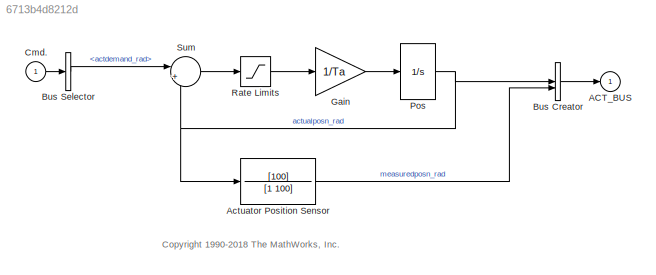
MODEL slx_6713b4d8212d
KIND model
CONFIG AbsTol = auto
CONFIG EnableMultiTasking = on
CONFIG FixedStep = auto
CONFIG MaxStep = 0.1
CONFIG MinStep = auto
CONFIG RelTol = 1e-3
CONFIG SampleTimeConstraint = Unconstrained
CONFIG SolverName = VariableStepAuto
CONFIG StartTime = 0.0
CONFIG StopTime = 10.0
BLOCK [Outport] ACT_BUS
  BusOutputAsStruct = on
  InitialOutput = 0
  OutDataTypeStr = Bus: ACT_BUS
  VectorParamsAs1DForOutWhenUnconnected = off
BLOCK [TransferFcn] Actuator Position Sensor
  Denominator = [1 100]
  Numerator = [100]
BLOCK [BusCreator] Bus Creator
  DisplayOption = bar
  InheritFromInputs = on
  Inputs = 2
  OutDataTypeStr = Bus: ACT_BUS
BLOCK [BusSelector] Bus Selector
  OutputSignals = actdemand_rad
BLOCK [Inport] Cmd.
  OutDataTypeStr = Bus: CONTROL_BUS
BLOCK [Gain] Gain
  Gain = 1/Ta
  OutDataTypeStr = Inherit: Same as input
  ParamDataTypeStr = Inherit: Same as input
  SaturateOnIntegerOverflow = on
BLOCK [Integrator] Pos
  LimitOutput = on
  LowerSaturationLimit = -pi*45/180
  UpperSaturationLimit = pi*45/180
BLOCK [Saturate] Rate Limits
BLOCK [Sum] Sum
  InputSameDT = on
  Inputs = |+-
  OutDataTypeStr = Inherit: Same as first input
  SaturateOnIntegerOverflow = on
ANNOTATION (root): <copyright redacted>
LINE Actuator Position Sensor:1 -> Bus Creator:2
LINE Bus Creator:1 -> ACT_BUS:1
LINE Bus Selector:1 -> Sum:1
LINE Cmd.:1 -> Bus Selector:1
LINE Gain:1 -> Pos:1
NET Pos:1 -> Actuator Position Sensor:1, Bus Creator:1, Sum:2
LINE Rate Limits:1 -> Gain:1
LINE Sum:1 -> Rate Limits:1
note: NET lines group one-source signal fan-out (src -> all destinations, sorted); 1:1 wires keep LINE
